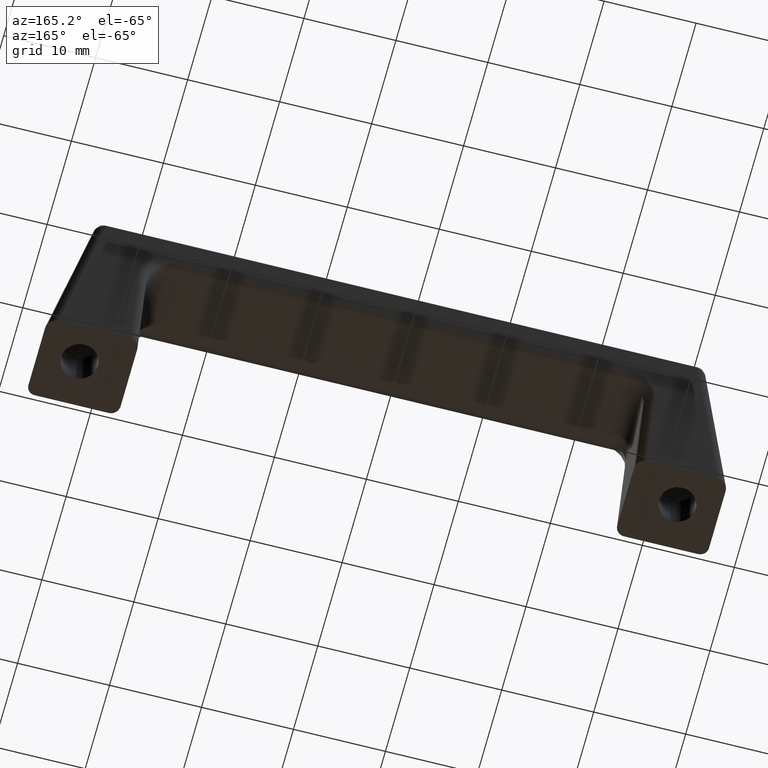
[diagram: clean part render]
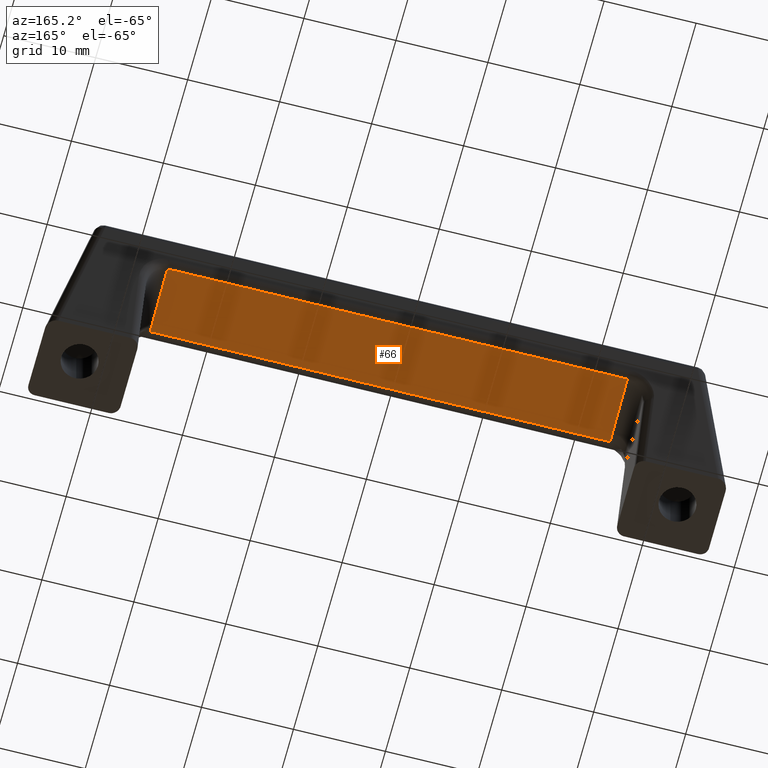
[diagram: same view with one face highlighted and labeled with its STEP entity id]
A machine part, auxiliary view. The second image highlights one B-rep face of the part: STEP entity #66.
In plain terms, the highlighted planar face has unit normal (0, -0.1058, 0.9944).
Its self-contained STEP definition (entity closure, byte-faithful):
#66=ADVANCED_FACE('',(#341),#340,.F.);
#340=PLANE('',#1205);
#341=FACE_OUTER_BOUND('',#1206,.T.);
#1202=CARTESIAN_POINT('',(-3.00000000000E+01,1.35155127641E+01,1.10123403794E+01));
#1203=DIRECTION('',(0.00000000000E+00,-1.05788346135E-01,9.94388669395E-01));
#1204=DIRECTION('',(0.00000000000E+00,-9.94388669395E-01,-1.05788346135E-01));
#1205=AXIS2_PLACEMENT_3D('',#1202,#1203,#1204);
#1206=EDGE_LOOP('',(#1372,#1373,#1374,#1375));
#1372=ORIENTED_EDGE('',*,*,#1529,.T.);
#1373=ORIENTED_EDGE('',*,*,#1499,.T.);
#1374=ORIENTED_EDGE('',*,*,#1530,.T.);
#1375=ORIENTED_EDGE('',*,*,#1483,.T.);
#1483=EDGE_CURVE('',#1694,#1714,#1721,.T.);
#1499=EDGE_CURVE('',#1802,#1822,#1829,.T.);
#1529=EDGE_CURVE('',#1714,#1802,#2026,.T.);
#1530=EDGE_CURVE('',#1822,#1694,#2032,.T.);
#1694=VERTEX_POINT('',#2249);
#1714=VERTEX_POINT('',#2261);
#1721=LINE('',#2266,#2267);
#1802=VERTEX_POINT('',#2315);
#1822=VERTEX_POINT('',#2329);
#1829=LINE('',#2334,#2335);
#2026=LINE('',#2457,#2458);
#2032=LINE('',#2460,#2461);
#2249=CARTESIAN_POINT('',(2.50000000000E+01,5.65050309147E+00,1.01756188930E+01));
#2261=CARTESIAN_POINT('',(-2.50000000000E+01,5.65050309147E+00,1.01756188930E+01));
#2266=CARTESIAN_POINT('',(2.50000000000E+01,5.65050309147E+00,1.01756188930E+01));
#2267=VECTOR('',#2268,5.00000000000E+01);
#2268=DIRECTION('',(-1.00000000000E+00,0.00000000000E+00,0.00000000000E+00));
#2315=CARTESIAN_POINT('',(-2.50000000000E+01,1.28005118848E+01,1.09362747898E+01));
#2329=CARTESIAN_POINT('',(2.50000000000E+01,1.28005118848E+01,1.09362747898E+01));
#2334=CARTESIAN_POINT('',(-2.50000000000E+01,1.28005118848E+01,1.09362747898E+01));
#2335=VECTOR('',#2336,5.00000000000E+01);
#2336=DIRECTION('',(1.00000000000E+00,0.00000000000E+00,0.00000000000E+00));
#2457=CARTESIAN_POINT('',(-2.50000000000E+01,5.65050309147E+00,1.01756188930E+01));
#2458=VECTOR('',#2459,7.19035625946E+00);
#2459=DIRECTION('',(0.00000000000E+00,9.94388669395E-01,1.05788346135E-01));
#2460=CARTESIAN_POINT('',(2.50000000000E+01,1.28005118848E+01,1.09362747898E+01));
#2461=VECTOR('',#2462,7.19035625946E+00);
#2462=DIRECTION('',(0.00000000000E+00,-9.94388669395E-01,-1.05788346135E-01));